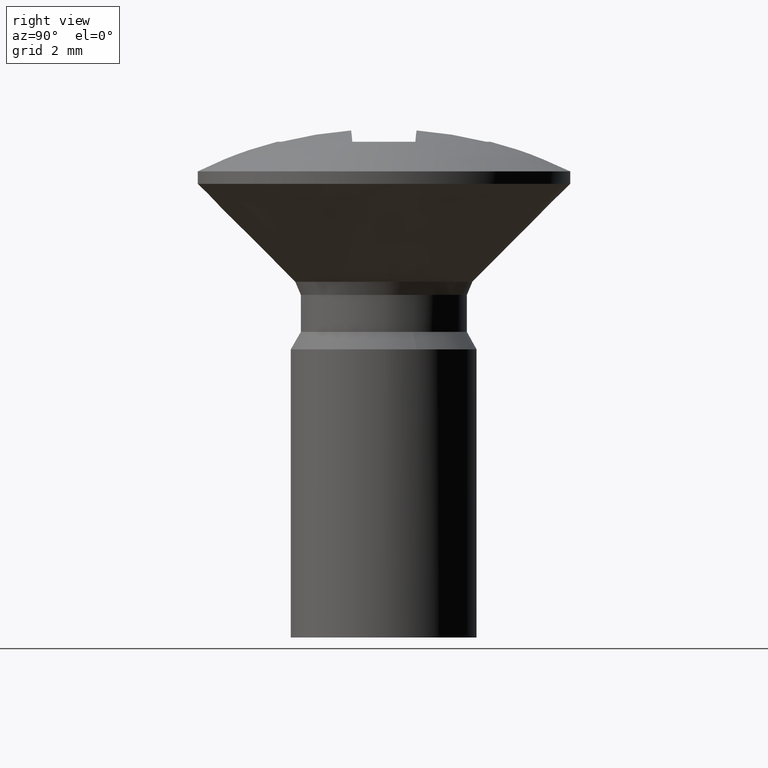
[diagram: clean part render]
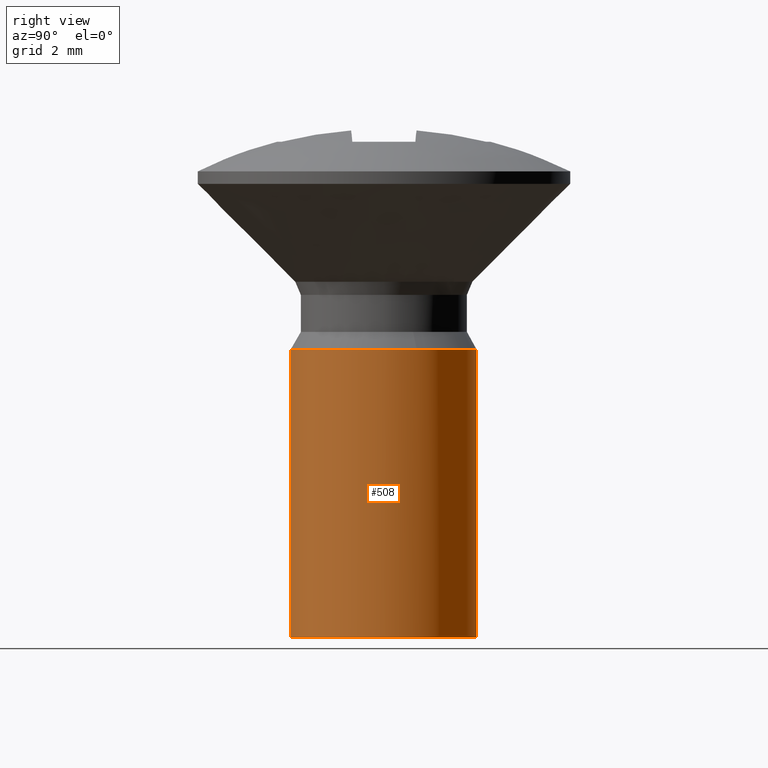
[diagram: same view with one face highlighted and labeled with its STEP entity id]
A machine part, right view. The second image highlights one B-rep face of the part: STEP entity #508.
In plain terms, the highlighted face is a freeform B-spline surface patch.
Its self-contained STEP definition (entity closure, byte-faithful):
#308=CARTESIAN_POINT('',(2.808430736327644,1.054853923182961,-5.725000000001246));
#309=VERTEX_POINT('',#308);
#310=CARTESIAN_POINT('',(3.0,0.0,-5.725000000000000));
#311=VERTEX_POINT('',#310);
#312=CARTESIAN_POINT('',(2.808430736327644,1.054853923182961,-5.725000000001246));
#313=CARTESIAN_POINT('',(3.000000000000000,0.544822158209100,-5.725000000000000));
#314=CARTESIAN_POINT('',(3.0,0.0,-5.725000000000000));
#322=(BOUNDED_CURVE()B_SPLINE_CURVE(2,(#312,#313,#314),.UNSPECIFIED.,.F.,.U.)B_SPLINE_CURVE_WITH_KNOTS((3,3),(0.440284170898010,0.500000000000000),.UNSPECIFIED.)CURVE()GEOMETRIC_REPRESENTATION_ITEM()RATIONAL_B_SPLINE_CURVE((0.893499554634666,0.930038554400817,1.0))REPRESENTATION_ITEM(''));
#323=EDGE_CURVE('',#309,#311,#322,.T.);
#333=CARTESIAN_POINT('',(0.183143241077346,-2.994404538160465,-5.724999995645167));
#334=VERTEX_POINT('',#333);
#340=CARTESIAN_POINT('',(3.0,0.0,-5.725000000000000));
#341=CARTESIAN_POINT('',(3.000000000000000,-2.822120445493816,-5.724999999999999));
#342=CARTESIAN_POINT('',(0.183143241077346,-2.994404538160464,-5.724999995645168));
#350=(BOUNDED_CURVE()B_SPLINE_CURVE(2,(#340,#341,#342),.UNSPECIFIED.,.F.,.U.)B_SPLINE_CURVE_WITH_KNOTS((3,3),(0.500000000000000,0.739333099233568),.UNSPECIFIED.)CURVE()GEOMETRIC_REPRESENTATION_ITEM()RATIONAL_B_SPLINE_CURVE((1.0,0.719603832787524,0.976072335272453))REPRESENTATION_ITEM(''));
#351=EDGE_CURVE('',#311,#334,#350,.T.);
#378=CARTESIAN_POINT('',(-0.354100393105621,2.979028853770474,-5.725000000000005));
#379=VERTEX_POINT('',#378);
#380=CARTESIAN_POINT('',(-0.354100393105621,2.979028853770474,-5.725000000000005));
#381=CARTESIAN_POINT('',(-0.177671191308454,3.0,-5.725000000000000));
#382=CARTESIAN_POINT('',(0.0,3.0,-5.725000000000000));
#383=CARTESIAN_POINT('',(2.077828787070626,3.0,-5.724999999999999));
#384=CARTESIAN_POINT('',(2.808430736327644,1.054853923182961,-5.725000000001246));
#392=(BOUNDED_CURVE()B_SPLINE_CURVE(2,(#380,#381,#382,#383,#384),.UNSPECIFIED.,.F.,.U.)B_SPLINE_CURVE_WITH_KNOTS((3,2,3),(0.229562604613297,0.250000000000000,0.440284170898010),.UNSPECIFIED.)CURVE()GEOMETRIC_REPRESENTATION_ITEM()RATIONAL_B_SPLINE_CURVE((0.956027011144811,0.976056101924101,1.0,0.777068226785731,0.893499554634666))REPRESENTATION_ITEM(''));
#393=EDGE_CURVE('',#379,#309,#392,.T.);
#433=CARTESIAN_POINT('',(-0.398310318678609,2.973773833965636,-5.493125000000000));
#434=CARTESIAN_POINT('',(-0.376144188747032,2.976408614511354,-5.493125000000000));
#435=CARTESIAN_POINT('',(-0.268844185913933,2.989162846345817,-5.493124999999998));
#436=CARTESIAN_POINT('',(-0.183145618604571,2.994404395265600,-5.493124999999998));
#437=CARTESIAN_POINT('',(2.811258776661029,3.177550013870171,-5.493124999999998));
#438=CARTESIAN_POINT('',(2.994404395265600,0.183145618604571,-5.493124999999998));
#439=CARTESIAN_POINT('',(3.177550013870171,-2.811258776661029,-5.493124999999998));
#440=CARTESIAN_POINT('',(0.161610501661651,-2.995721539443075,-5.493124999999996));
#441=CARTESIAN_POINT('',(0.140203307094233,-2.997030859552892,-5.493125000000000));
#442=CARTESIAN_POINT('',(-0.398310318678609,2.973773833965636,-15.237671875000004));
#443=CARTESIAN_POINT('',(-0.376144188747032,2.976408614511354,-15.237671875000004));
#444=CARTESIAN_POINT('',(-0.268844185913933,2.989162846345817,-15.237671874999998));
#445=CARTESIAN_POINT('',(-0.183145618604571,2.994404395265600,-15.237671875000000));
#446=CARTESIAN_POINT('',(2.811258776661029,3.177550013870171,-15.237671875000007));
#447=CARTESIAN_POINT('',(2.994404395265600,0.183145618604571,-15.237671875000000));
#448=CARTESIAN_POINT('',(3.177550013870171,-2.811258776661029,-15.237671875000007));
#449=CARTESIAN_POINT('',(0.161610501661651,-2.995721539443075,-15.237671874999998));
#450=CARTESIAN_POINT('',(0.140203307094233,-2.997030859552892,-15.237671875000004));
#458=(BOUNDED_SURFACE()B_SPLINE_SURFACE(2,1,((#433,#442),(#434,#443),(#435,#444),(#436,#445),(#437,#446),(#438,#447),(#439,#448),(#440,#449),(#441,#450)),.UNSPECIFIED.,.F.,.F.,.U.)B_SPLINE_SURFACE_WITH_KNOTS((3,1,2,2,1,3),(2,2),(0.0,0.050697120264705,0.249519630203791,5.220082378680930,10.190645127158071,10.241350386400670),(0.0,9.744546875000006),.UNSPECIFIED.)GEOMETRIC_REPRESENTATION_ITEM()RATIONAL_B_SPLINE_SURFACE(((0.972009064907837,0.972009064907837),(0.974757432851482,0.974757432851482),(0.988284271247462,0.988284271247462),(1.0,1.0),(0.707106781186548,0.707106781186548),(1.0,1.0),(0.707106781186548,0.707106781186548),(1.002987836054356,1.002987836054356),(1.005975672108711,1.005975672108711)))REPRESENTATION_ITEM('')SURFACE());
#459=ORIENTED_EDGE('',*,*,#393,.T.);
#460=ORIENTED_EDGE('',*,*,#323,.T.);
#461=ORIENTED_EDGE('',*,*,#351,.T.);
#462=CARTESIAN_POINT('',(0.183140927725295,-2.994404682164692,-15.0));
#463=VERTEX_POINT('',#462);
#464=CARTESIAN_POINT('',(0.183143241077346,-2.994404538160465,-5.724999995645167));
#465=CARTESIAN_POINT('',(0.183140927725295,-2.994404682164692,-15.0));
#466=QUASI_UNIFORM_CURVE('',1,(#464,#465),.UNSPECIFIED.,.F.,.U.);
#467=EDGE_CURVE('',#334,#463,#466,.T.);
#468=ORIENTED_EDGE('',*,*,#467,.T.);
#469=CARTESIAN_POINT('',(3.0,0.0,-15.0));
#470=VERTEX_POINT('',#469);
#471=CARTESIAN_POINT('',(3.0,0.0,-15.0));
#472=CARTESIAN_POINT('',(3.000000000000000,-2.822122629965981,-15.000000000000004));
#473=CARTESIAN_POINT('',(0.183140927725295,-2.994404682164693,-15.0));
#481=(BOUNDED_CURVE()B_SPLINE_CURVE(2,(#471,#472,#473),.UNSPECIFIED.,.F.,.U.)B_SPLINE_CURVE_WITH_KNOTS((3,3),(0.500000000000000,0.739333232544912),.UNSPECIFIED.)CURVE()GEOMETRIC_REPRESENTATION_ITEM()RATIONAL_B_SPLINE_CURVE((1.0,0.719603676603569,0.976072620984549))REPRESENTATION_ITEM(''));
#482=EDGE_CURVE('',#470,#463,#481,.T.);
#483=ORIENTED_EDGE('',*,*,#482,.F.);
#484=CARTESIAN_POINT('',(-0.354100420918128,2.979028850464580,-15.0));
#485=VERTEX_POINT('',#484);
#486=CARTESIAN_POINT('',(-0.354100420918128,2.979028850464580,-15.000000000000004));
#487=CARTESIAN_POINT('',(-0.177671205361720,3.000000000000000,-14.999999999999996));
#488=CARTESIAN_POINT('',(0.0,3.0,-15.0));
#489=CARTESIAN_POINT('',(3.0,3.0,-14.999999999999995));
#490=CARTESIAN_POINT('',(3.0,0.0,-15.0));
#498=(BOUNDED_CURVE()B_SPLINE_CURVE(2,(#486,#487,#488,#489,#490),.UNSPECIFIED.,.F.,.U.)B_SPLINE_CURVE_WITH_KNOTS((3,2,3),(0.229562603035466,0.250000000000000,0.500000000000000),.UNSPECIFIED.)CURVE()GEOMETRIC_REPRESENTATION_ITEM()RATIONAL_B_SPLINE_CURVE((0.956027008052193,0.976056100075557,1.0,0.707106781186548,1.0))REPRESENTATION_ITEM(''));
#499=EDGE_CURVE('',#485,#470,#498,.T.);
#500=ORIENTED_EDGE('',*,*,#499,.F.);
#501=CARTESIAN_POINT('',(-0.354100393105621,2.979028853770474,-5.725000000000005));
#502=CARTESIAN_POINT('',(-0.354100420918128,2.979028850464580,-15.0));
#503=QUASI_UNIFORM_CURVE('',1,(#501,#502),.UNSPECIFIED.,.F.,.U.);
#504=EDGE_CURVE('',#379,#485,#503,.T.);
#505=ORIENTED_EDGE('',*,*,#504,.F.);
#506=EDGE_LOOP('',(#459,#460,#461,#468,#483,#500,#505));
#507=FACE_OUTER_BOUND('',#506,.T.);
#508=ADVANCED_FACE('',(#507),#458,.T.);